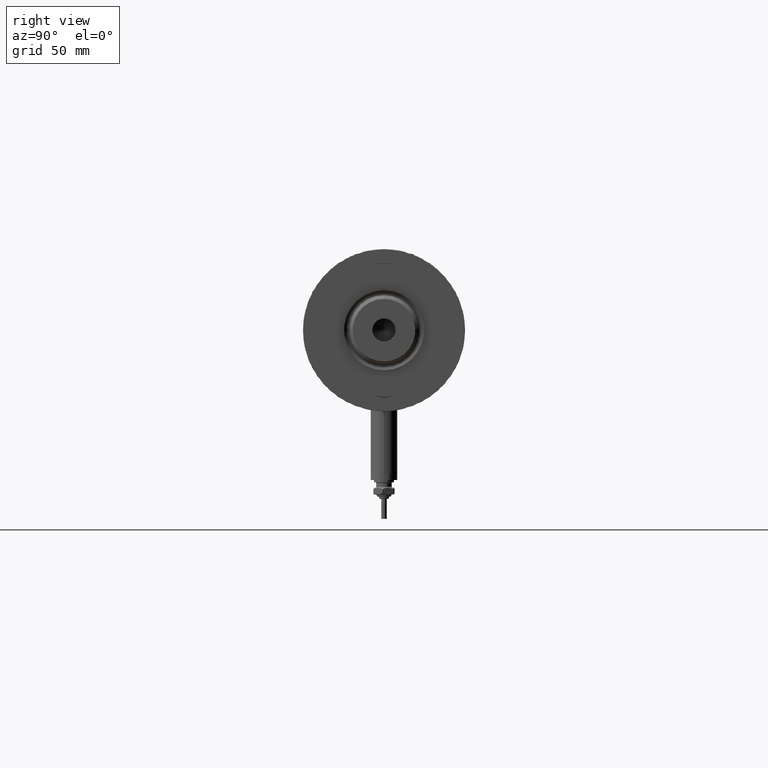
[diagram: clean part render]
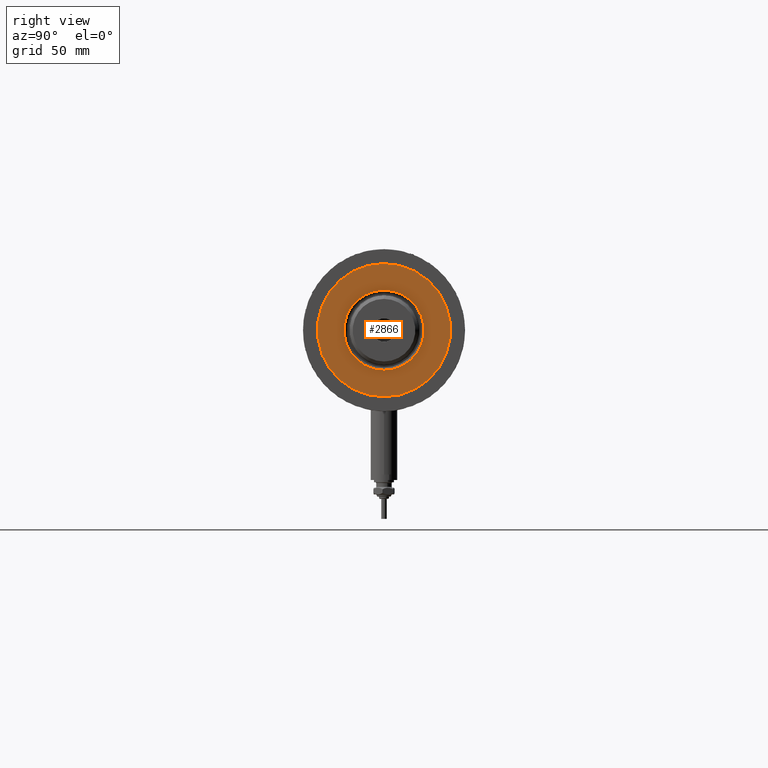
[diagram: same view with one face highlighted and labeled with its STEP entity id]
A machine part, right view. The second image highlights one B-rep face of the part: STEP entity #2866.
In plain terms, the highlighted planar face has unit normal (1, 0, -0).
Its self-contained STEP definition (entity closure, byte-faithful):
#138 = AXIS2_PLACEMENT_3D ( 'NONE', #3748, #505, #2843 ) ;
#333 = EDGE_CURVE ( 'NONE', #3017, #4311, #405, .T. ) ;
#405 = CIRCLE ( 'NONE', #3880, 18.04999999999996874 ) ;
#505 = DIRECTION ( 'NONE',  ( 0.000000000000000000, 0.000000000000000000, 1.000000000000000000 ) ) ;
#693 = AXIS2_PLACEMENT_3D ( 'NONE', #1649, #2136, #5796 ) ;
#736 = EDGE_CURVE ( 'NONE', #4311, #3017, #1561, .T. ) ;
#761 = CARTESIAN_POINT ( 'NONE',  ( 0.000000000000000000, 0.000000000000000000, 50.19999999999999574 ) ) ;
#1277 = DIRECTION ( 'NONE',  ( -0.000000000000000000, -0.000000000000000000, -1.000000000000000000 ) ) ;
#1524 = ORIENTED_EDGE ( 'NONE', *, *, #3204, .T. ) ;
#1561 = CIRCLE ( 'NONE', #1660, 18.04999999999996874 ) ;
#1649 = CARTESIAN_POINT ( 'NONE',  ( 0.000000000000000000, 0.000000000000000000, 50.19999999999999574 ) ) ;
#1660 = AXIS2_PLACEMENT_3D ( 'NONE', #4538, #1277, #2708 ) ;
#1686 = AXIS2_PLACEMENT_3D ( 'NONE', #761, #1741, #2159 ) ;
#1741 = DIRECTION ( 'NONE',  ( 0.000000000000000000, 0.000000000000000000, 1.000000000000000000 ) ) ;
#2044 = CARTESIAN_POINT ( 'NONE',  ( 18.04999999999996874, 0.000000000000000000, 50.19999999999999574 ) ) ;
#2136 = DIRECTION ( 'NONE',  ( 0.000000000000000000, 0.000000000000000000, 1.000000000000000000 ) ) ;
#2159 = DIRECTION ( 'NONE',  ( 1.000000000000000000, 0.000000000000000000, 0.000000000000000000 ) ) ;
#2310 = ORIENTED_EDGE ( 'NONE', *, *, #333, .T. ) ;
#2438 = CARTESIAN_POINT ( 'NONE',  ( 0.000000000000000000, 0.000000000000000000, 50.19999999999999574 ) ) ;
#2708 = DIRECTION ( 'NONE',  ( 1.000000000000000000, 0.000000000000000000, 0.000000000000000000 ) ) ;
#2843 = DIRECTION ( 'NONE',  ( 1.000000000000000000, 0.000000000000000000, -0.000000000000000000 ) ) ;
#2849 = CARTESIAN_POINT ( 'NONE',  ( 30.00000000000000000, 3.673940397442058389E-15, 50.19999999999999574 ) ) ;
#2866 = ADVANCED_FACE ( 'NONE', ( #4646, #5509 ), #3212, .T. ) ;
#3017 = VERTEX_POINT ( 'NONE', #4564 ) ;
#3204 = EDGE_CURVE ( 'NONE', #4556, #4525, #5609, .T. ) ;
#3212 = PLANE ( 'NONE',  #138 ) ;
#3273 = EDGE_LOOP ( 'NONE', ( #3332, #1524 ) ) ;
#3332 = ORIENTED_EDGE ( 'NONE', *, *, #4807, .T. ) ;
#3430 = CIRCLE ( 'NONE', #1686, 30.00000000000000000 ) ;
#3494 = DIRECTION ( 'NONE',  ( 1.000000000000000000, 0.000000000000000000, 0.000000000000000000 ) ) ;
#3748 = CARTESIAN_POINT ( 'NONE',  ( 0.000000000000000000, 0.000000000000000000, 50.19999999999999574 ) ) ;
#3855 = ORIENTED_EDGE ( 'NONE', *, *, #736, .T. ) ;
#3880 = AXIS2_PLACEMENT_3D ( 'NONE', #2438, #5729, #3494 ) ;
#4201 = CARTESIAN_POINT ( 'NONE',  ( -30.00000000000000000, 0.000000000000000000, 50.19999999999999574 ) ) ;
#4311 = VERTEX_POINT ( 'NONE', #2044 ) ;
#4525 = VERTEX_POINT ( 'NONE', #4201 ) ;
#4538 = CARTESIAN_POINT ( 'NONE',  ( 0.000000000000000000, 0.000000000000000000, 50.19999999999999574 ) ) ;
#4556 = VERTEX_POINT ( 'NONE', #2849 ) ;
#4564 = CARTESIAN_POINT ( 'NONE',  ( -18.04999999999996874, 2.210487472460968951E-15, 50.19999999999999574 ) ) ;
#4646 = FACE_BOUND ( 'NONE', #5278, .T. ) ;
#4807 = EDGE_CURVE ( 'NONE', #4525, #4556, #3430, .T. ) ;
#5278 = EDGE_LOOP ( 'NONE', ( #3855, #2310 ) ) ;
#5509 = FACE_OUTER_BOUND ( 'NONE', #3273, .T. ) ;
#5609 = CIRCLE ( 'NONE', #693, 30.00000000000000000 ) ;
#5729 = DIRECTION ( 'NONE',  ( -0.000000000000000000, -0.000000000000000000, -1.000000000000000000 ) ) ;
#5796 = DIRECTION ( 'NONE',  ( 1.000000000000000000, 0.000000000000000000, 0.000000000000000000 ) ) ;